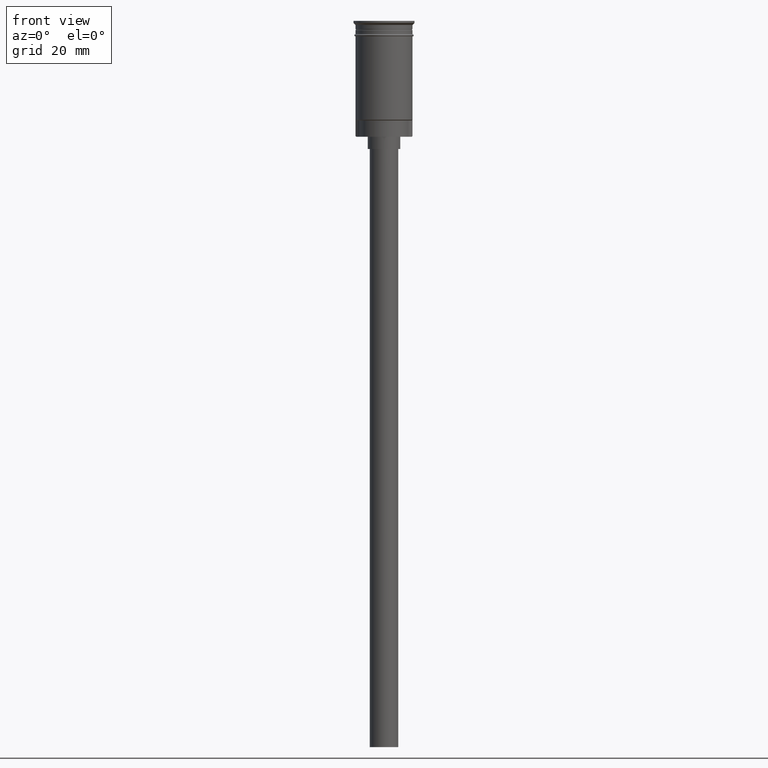
[diagram: clean part render]
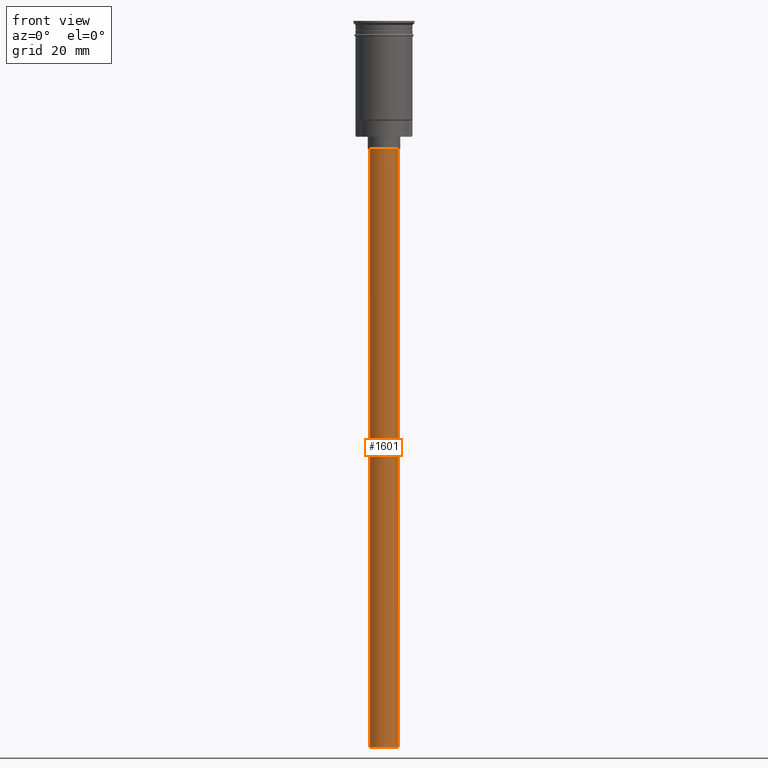
[diagram: same view with one face highlighted and labeled with its STEP entity id]
A machine part, front view. The second image highlights one B-rep face of the part: STEP entity #1601.
In plain terms, the highlighted cylindrical surface (edge-blend (fillet) strip) has radius 3.5 mm, axis along (-0, -0, 1).
Its self-contained STEP definition (entity closure, byte-faithful):
#17 = LINE ( 'NONE', #1532, #1342 ) ;
#44 = CARTESIAN_POINT ( 'NONE',  ( 0.000000000000000000, 0.000000000000000000, -178.5000000000000000 ) ) ;
#47 = AXIS2_PLACEMENT_3D ( 'NONE', #1462, #1315, #577 ) ;
#73 = EDGE_CURVE ( 'NONE', #206, #1164, #325, .T. ) ;
#156 = EDGE_CURVE ( 'NONE', #967, #1033, #197, .T. ) ;
#180 = DIRECTION ( 'NONE',  ( -0.000000000000000000, -0.000000000000000000, 1.000000000000000000 ) ) ;
#197 = CIRCLE ( 'NONE', #47, 3.500000000000000444 ) ;
#206 = VERTEX_POINT ( 'NONE', #836 ) ;
#313 = ORIENTED_EDGE ( 'NONE', *, *, #704, .T. ) ;
#325 = CIRCLE ( 'NONE', #1059, 3.500000000000000444 ) ;
#382 = AXIS2_PLACEMENT_3D ( 'NONE', #1370, #1389, #1501 ) ;
#478 = CARTESIAN_POINT ( 'NONE',  ( 3.500000000000000444, 0.000000000000000000, -31.50000000000000000 ) ) ;
#514 = CARTESIAN_POINT ( 'NONE',  ( -3.500000000000000444, 4.286263797015737088E-16, -31.50000000000000000 ) ) ;
#520 = CYLINDRICAL_SURFACE ( 'NONE', #382, 3.500000000000000444 ) ;
#577 = DIRECTION ( 'NONE',  ( -1.000000000000000000, 0.000000000000000000, 0.000000000000000000 ) ) ;
#704 = EDGE_CURVE ( 'NONE', #206, #967, #862, .T. ) ;
#836 = CARTESIAN_POINT ( 'NONE',  ( 3.500000000000000444, 0.000000000000000000, -178.5000000000000000 ) ) ;
#862 = LINE ( 'NONE', #1277, #1369 ) ;
#921 = ORIENTED_EDGE ( 'NONE', *, *, #73, .F. ) ;
#948 = DIRECTION ( 'NONE',  ( -1.000000000000000000, 0.000000000000000000, 0.000000000000000000 ) ) ;
#967 = VERTEX_POINT ( 'NONE', #478 ) ;
#1026 = EDGE_CURVE ( 'NONE', #1164, #1033, #17, .T. ) ;
#1033 = VERTEX_POINT ( 'NONE', #514 ) ;
#1059 = AXIS2_PLACEMENT_3D ( 'NONE', #44, #1307, #948 ) ;
#1164 = VERTEX_POINT ( 'NONE', #1306 ) ;
#1200 = EDGE_LOOP ( 'NONE', ( #1386, #921, #313, #1244 ) ) ;
#1244 = ORIENTED_EDGE ( 'NONE', *, *, #156, .T. ) ;
#1277 = CARTESIAN_POINT ( 'NONE',  ( 3.500000000000000444, 0.000000000000000000, -178.5000000000000000 ) ) ;
#1306 = CARTESIAN_POINT ( 'NONE',  ( -3.500000000000000444, 4.286263797015737088E-16, -178.5000000000000000 ) ) ;
#1307 = DIRECTION ( 'NONE',  ( 0.000000000000000000, 0.000000000000000000, -1.000000000000000000 ) ) ;
#1315 = DIRECTION ( 'NONE',  ( 0.000000000000000000, 0.000000000000000000, -1.000000000000000000 ) ) ;
#1342 = VECTOR ( 'NONE', #180, 1000.000000000000000 ) ;
#1369 = VECTOR ( 'NONE', #1380, 1000.000000000000000 ) ;
#1370 = CARTESIAN_POINT ( 'NONE',  ( 0.000000000000000000, 0.000000000000000000, -178.5000000000000000 ) ) ;
#1380 = DIRECTION ( 'NONE',  ( -0.000000000000000000, -0.000000000000000000, 1.000000000000000000 ) ) ;
#1386 = ORIENTED_EDGE ( 'NONE', *, *, #1026, .F. ) ;
#1389 = DIRECTION ( 'NONE',  ( -0.000000000000000000, -0.000000000000000000, 1.000000000000000000 ) ) ;
#1396 = FACE_OUTER_BOUND ( 'NONE', #1200, .T. ) ;
#1462 = CARTESIAN_POINT ( 'NONE',  ( 0.000000000000000000, 0.000000000000000000, -31.50000000000000000 ) ) ;
#1501 = DIRECTION ( 'NONE',  ( 1.000000000000000000, 0.000000000000000000, 0.000000000000000000 ) ) ;
#1532 = CARTESIAN_POINT ( 'NONE',  ( -3.500000000000000444, 4.286263797015737088E-16, -178.5000000000000000 ) ) ;
#1601 = ADVANCED_FACE ( 'NONE', ( #1396 ), #520, .T. ) ;